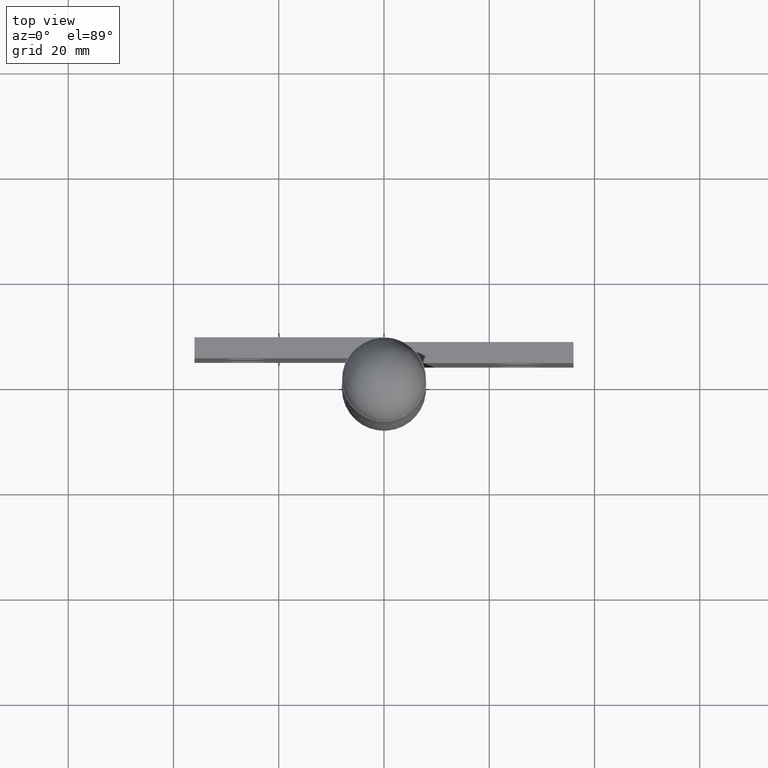
[diagram: clean part render]
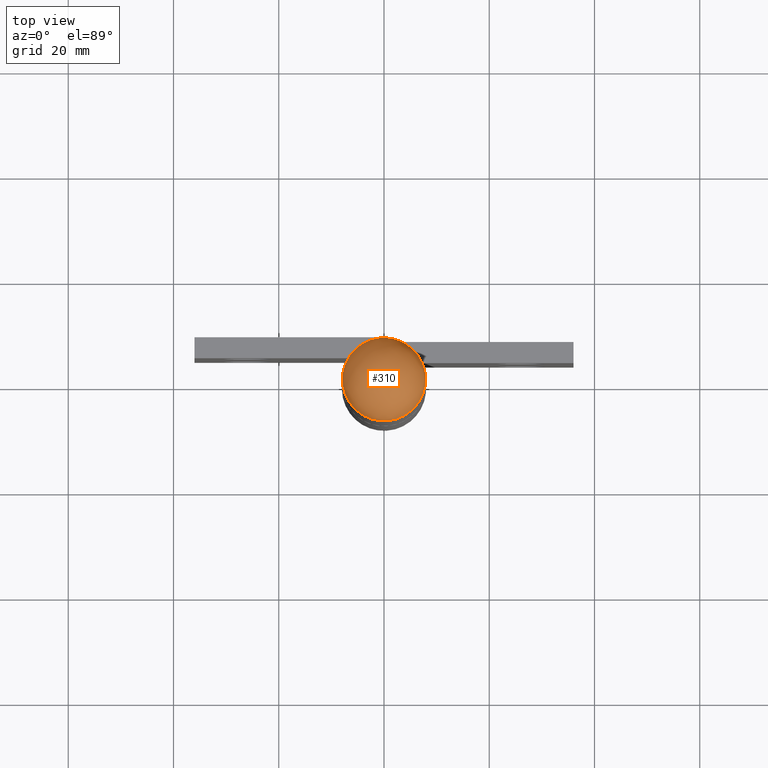
[diagram: same view with one face highlighted and labeled with its STEP entity id]
A machine part, top view. The second image highlights one B-rep face of the part: STEP entity #310.
In plain terms, the highlighted face is a freeform B-spline surface patch.
Its self-contained STEP definition (entity closure, byte-faithful):
#230=CARTESIAN_POINT('',(-5.178493687840122,5.178493687840122,2.962500000000000));
#231=CARTESIAN_POINT('',(-4.689956547477846,6.253275396637129,1.937735849056604));
#232=CARTESIAN_POINT('',(-1.972759500129570,7.891038000518281,0.376190476190477));
#233=CARTESIAN_POINT('',(1.972759500129570,7.891038000518281,0.376190476190477));
#234=CARTESIAN_POINT('',(4.689956547477846,6.253275396637129,1.937735849056604));
#235=CARTESIAN_POINT('',(5.178493687840122,5.178493687840122,2.962500000000000));
#236=CARTESIAN_POINT('',(-6.253275396637129,4.689956547477846,1.937735849056604));
#237=CARTESIAN_POINT('',(-5.918278500388709,5.918278500388709,0.376190476190477));
#238=CARTESIAN_POINT('',(-2.672770935659418,8.018312806978251,-2.293548387096773));
#239=CARTESIAN_POINT('',(2.672770935659418,8.018312806978251,-2.293548387096773));
#240=CARTESIAN_POINT('',(5.918278500388709,5.918278500388709,0.376190476190477));
#241=CARTESIAN_POINT('',(6.253275396637129,4.689956547477846,1.937735849056604));
#242=CARTESIAN_POINT('',(-7.891038000518281,1.972759500129570,0.376190476190477));
#243=CARTESIAN_POINT('',(-8.018312806978251,2.672770935659418,-2.293548387096773));
#244=CARTESIAN_POINT('',(-4.142794950272098,4.142794950272098,-7.899999999999998));
#245=CARTESIAN_POINT('',(4.142794950272098,4.142794950272098,-7.899999999999998));
#246=CARTESIAN_POINT('',(8.018312806978251,2.672770935659418,-2.293548387096773));
#247=CARTESIAN_POINT('',(7.891038000518281,1.972759500129570,0.376190476190477));
#248=CARTESIAN_POINT('',(-7.891038000518281,-1.972759500129570,0.376190476190477));
#249=CARTESIAN_POINT('',(-8.018312806978251,-2.672770935659418,-2.293548387096773));
#250=CARTESIAN_POINT('',(-4.142794950272098,-4.142794950272098,-7.899999999999998));
#251=CARTESIAN_POINT('',(4.142794950272098,-4.142794950272098,-7.899999999999998));
#252=CARTESIAN_POINT('',(8.018312806978251,-2.672770935659418,-2.293548387096773));
#253=CARTESIAN_POINT('',(7.891038000518281,-1.972759500129570,0.376190476190477));
#254=CARTESIAN_POINT('',(-6.253275396637129,-4.689956547477846,1.937735849056604));
#255=CARTESIAN_POINT('',(-5.918278500388709,-5.918278500388709,0.376190476190477));
#256=CARTESIAN_POINT('',(-2.672770935659418,-8.018312806978251,-2.293548387096773));
#257=CARTESIAN_POINT('',(2.672770935659418,-8.018312806978251,-2.293548387096773));
#258=CARTESIAN_POINT('',(5.918278500388709,-5.918278500388709,0.376190476190477));
#259=CARTESIAN_POINT('',(6.253275396637129,-4.689956547477846,1.937735849056604));
#260=CARTESIAN_POINT('',(-5.178493687840122,-5.178493687840122,2.962500000000000));
#261=CARTESIAN_POINT('',(-4.689956547477846,-6.253275396637129,1.937735849056604));
#262=CARTESIAN_POINT('',(-1.972759500129570,-7.891038000518281,0.376190476190477));
#263=CARTESIAN_POINT('',(1.972759500129570,-7.891038000518281,0.376190476190477));
#264=CARTESIAN_POINT('',(4.689956547477846,-6.253275396637129,1.937735849056604));
#265=CARTESIAN_POINT('',(5.178493687840122,-5.178493687840122,2.962500000000000));
#273=(BOUNDED_SURFACE()B_SPLINE_SURFACE(2,2,((#230,#236,#242,#248,#254,#260),(#231,#237,#243,#249,#255,#261),(#232,#238,#244,#250,#256,#262),(#233,#239,#245,#251,#257,#263),(#234,#240,#246,#252,#258,#264),(#235,#241,#247,#253,#259,#265)),.UNSPECIFIED.,.F.,.F.,.U.)B_SPLINE_SURFACE_WITH_KNOTS((3,1,1,1,3),(3,1,1,1,3),(0.0,7.284035077401491,14.568070154802980,21.852105232204469,29.136140309605960),(0.0,7.284035077401491,14.568070154802980,21.852105232204469,29.136140309605960),.UNSPECIFIED.)GEOMETRIC_REPRESENTATION_ITEM()RATIONAL_B_SPLINE_SURFACE(((3.200000000000000,2.650000000000000,2.100000000000000,2.100000000000000,2.650000000000000,3.200000000000000),(2.650000000000000,2.100000000000000,1.550000000000000,1.550000000000000,2.100000000000000,2.650000000000000),(2.100000000000000,1.550000000000000,1.0,1.0,1.550000000000000,2.100000000000000),(2.100000000000000,1.550000000000000,1.0,1.0,1.550000000000000,2.100000000000000),(2.650000000000000,2.100000000000000,1.550000000000000,1.550000000000000,2.100000000000000,2.650000000000000),(3.200000000000000,2.650000000000000,2.100000000000000,2.100000000000000,2.650000000000000,3.200000000000000)))REPRESENTATION_ITEM('')SURFACE());
#274=CARTESIAN_POINT('',(-7.900000000000000,0.0,0.0));
#275=VERTEX_POINT('',#274);
#276=CARTESIAN_POINT('',(7.900000000000000,0.0,0.0));
#277=VERTEX_POINT('',#276);
#278=CARTESIAN_POINT('',(-7.900000000000000,0.0,0.0));
#279=CARTESIAN_POINT('',(-7.900000000000000,7.900000000000000,0.0));
#280=CARTESIAN_POINT('',(0.0,7.900000000000000,0.0));
#281=CARTESIAN_POINT('',(7.900000000000000,7.900000000000000,0.0));
#282=CARTESIAN_POINT('',(7.900000000000000,0.0,0.0));
#290=(BOUNDED_CURVE()B_SPLINE_CURVE(2,(#278,#279,#280,#281,#282),.UNSPECIFIED.,.F.,.U.)B_SPLINE_CURVE_WITH_KNOTS((3,2,3),(0.0,0.250000000000000,0.500000000000000),.UNSPECIFIED.)CURVE()GEOMETRIC_REPRESENTATION_ITEM()RATIONAL_B_SPLINE_CURVE((1.0,0.707106781186547,1.0,0.707106781186547,1.0))REPRESENTATION_ITEM(''));
#291=EDGE_CURVE('',#275,#277,#290,.T.);
#292=ORIENTED_EDGE('',*,*,#291,.T.);
#293=CARTESIAN_POINT('',(7.900000000000000,0.0,0.0));
#294=CARTESIAN_POINT('',(7.900000000000000,-7.900000000000000,0.0));
#295=CARTESIAN_POINT('',(0.0,-7.900000000000000,0.0));
#296=CARTESIAN_POINT('',(-7.900000000000000,-7.900000000000000,0.0));
#297=CARTESIAN_POINT('',(-7.900000000000000,0.0,0.0));
#305=(BOUNDED_CURVE()B_SPLINE_CURVE(2,(#293,#294,#295,#296,#297),.UNSPECIFIED.,.F.,.U.)B_SPLINE_CURVE_WITH_KNOTS((3,2,3),(0.500000000000000,0.750000000000000,1.0),.UNSPECIFIED.)CURVE()GEOMETRIC_REPRESENTATION_ITEM()RATIONAL_B_SPLINE_CURVE((1.0,0.707106781186547,1.0,0.707106781186547,1.0))REPRESENTATION_ITEM(''));
#306=EDGE_CURVE('',#277,#275,#305,.T.);
#307=ORIENTED_EDGE('',*,*,#306,.T.);
#308=EDGE_LOOP('',(#292,#307));
#309=FACE_OUTER_BOUND('',#308,.T.);
#310=ADVANCED_FACE('',(#309),#273,.T.);